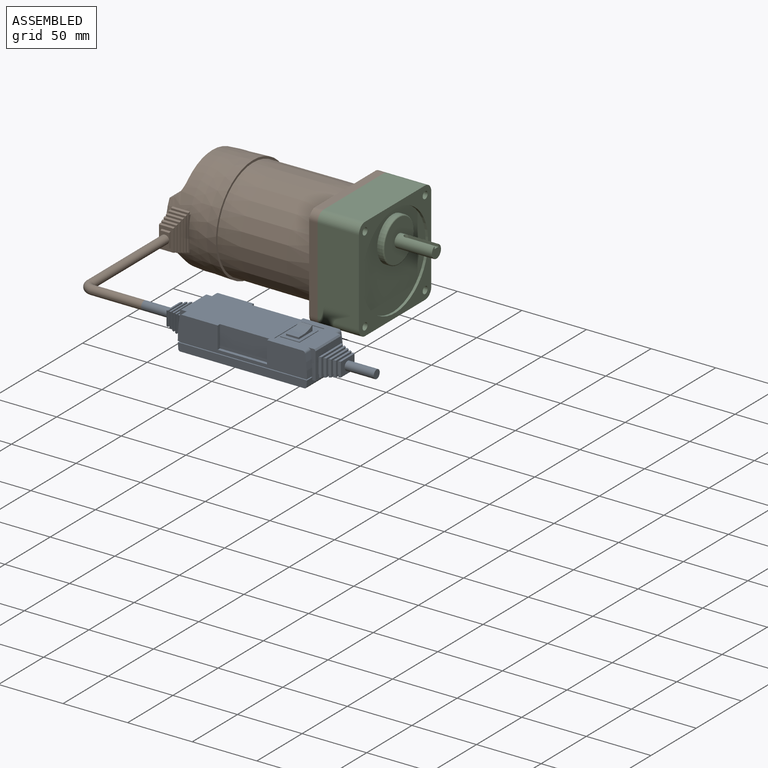
[diagram: assembled view]
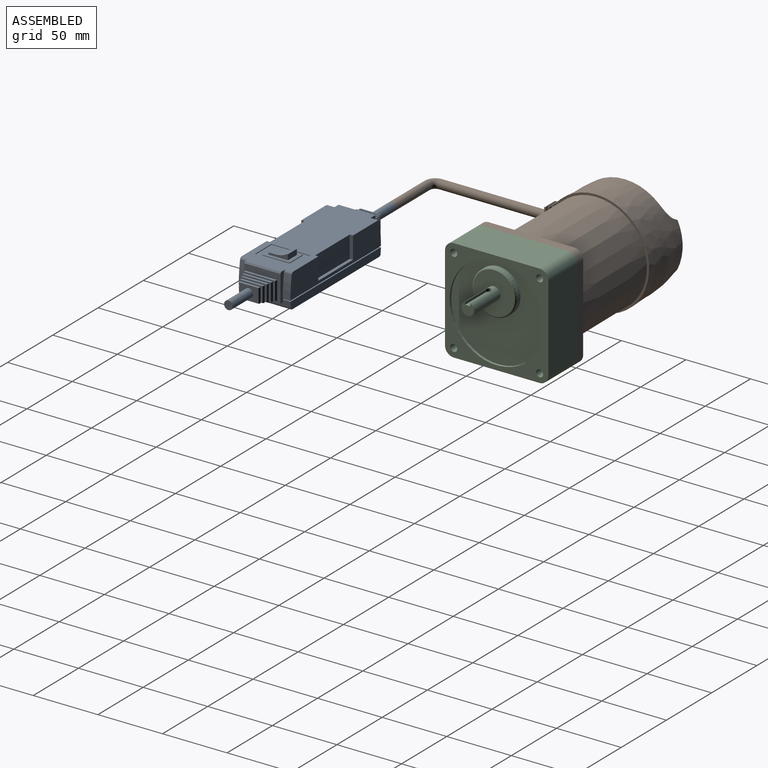
[diagram: assembled view, second angle]
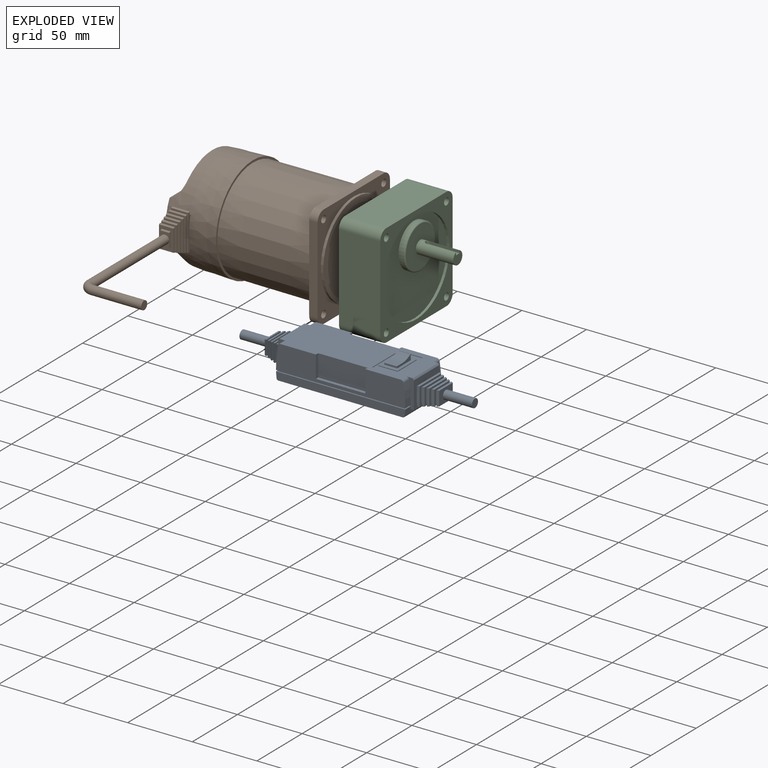
[diagram: exploded view]
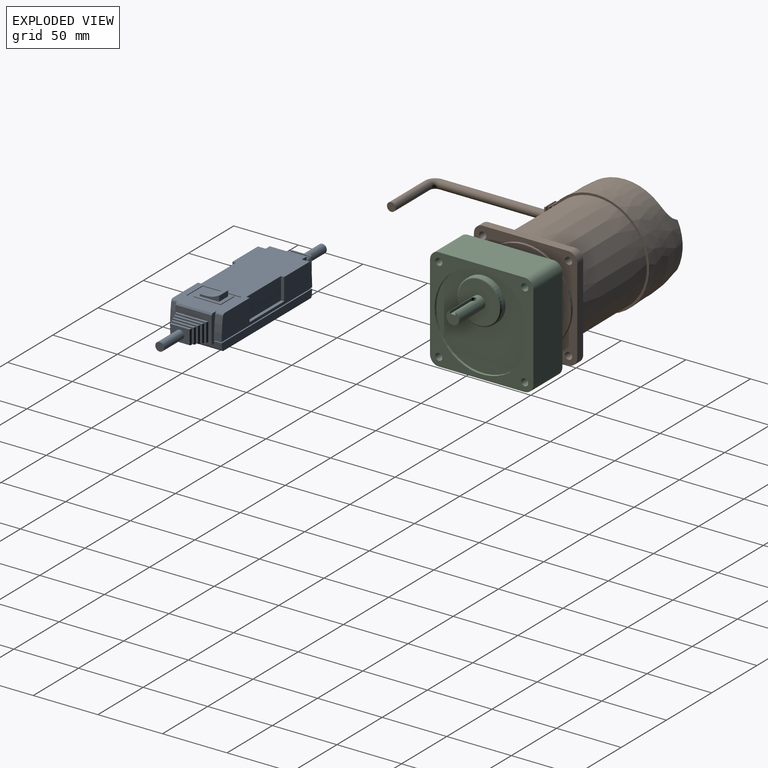
[diagram: exploded view, second angle]
ASSEMBLY  parts=3 mates=3
PART A: 174 faces, bbox 30.2x180x40 mm
  f0: plane 15x11mm, normal (0,-1,0), area 129.7mm2, adj f4,f17,f99,f100,f165
  f1: plane 16.1x11.4mm, normal (0,1,0), area 84.1mm2, adj f2,f4,f16,f17,f98,f99,f100,f101
  f2: plane 12.94x1.5mm, normal (0.99,-0.13,0), area 18.7mm2, adj f1,f97,f98,f101
  f3: plane 18.3x1.5mm, normal (0.99,-0.13,0), area 26.9mm2, adj f95,f96,f97,f102
  f4: plane 16.1x1.5mm, normal (0.99,-0.13,0), area 23.5mm2, adj f0,f1,f99,f100
  f5: plane 12x1.5mm, normal (0,0.34,-0.94), area 18.9mm2, adj f56,f112,f140,f161
  f6: plane 14.6x1.5mm, normal (0,0.34,-0.94), area 23mm2, adj f112,f114,f141,f160
  f7: plane 21.74x1.5mm, normal (-0.99,-0.13,0), area 32.1mm2, adj f46,f82,f83,f110
  f8: plane 24.9x1.5mm, normal (-0.99,-0.13,0), area 36.8mm2, adj f83,f84,f85,f109
  f9: plane 19.54x1.49mm, normal (-0.99,-0.13,0), area 28.5mm2, adj f10,f85,f86,f108
  f10: plane 18.45x1.5mm, normal (-0.01,1,0), area 27.6mm2, adj f9,f11,f86,f108
  f11: plane 22.7x1.5mm, normal (-0.99,-0.13,0), area 33.5mm2, adj f10,f87,f88,f89,f106,f107
  f12: plane 17.34x1.5mm, normal (-0.99,-0.13,0), area 25.4mm2, adj f89,f90,f91,f105
  f13: plane 20.5x1.5mm, normal (-0.99,-0.13,0), area 30.2mm2, adj f91,f92,f93,f104
  f14: plane 15.14x1.5mm, normal (-0.99,-0.13,0), area 22.1mm2, adj f93,f94,f95,f103
  f15: plane 18.3x1.5mm, normal (-0.99,-0.13,0), area 26.9mm2, adj f95,f96,f97,f102
  f16: plane 12.94x1.5mm, normal (-0.99,-0.13,0), area 18.7mm2, adj f1,f97,f98,f101
  f17: plane 16.1x1.5mm, normal (-0.99,-0.13,0), area 23.5mm2, adj f0,f1,f99,f100
  f18: plane 38.2x2.5mm, normal (-1,0,0), area 95.5mm2, adj f19,f20,f21,f76
  f19: plane 17x2.5mm, normal (0,1,0), area 42.5mm2, adj f18,f21,f76,f81
  f20: plane 17x2.5mm, normal (0,-1,0), area 42.5mm2, adj f18,f21,f76,f81
  f21: plane 38.2x17mm, normal (0,0,1), area 649.4mm2, adj f18,f19,f20,f81
  f22: plane 38.2x17mm, normal (0,0,-1), area 649.4mm2, adj f23,f24,f25,f81
  f23: plane 38.2x2.5mm, normal (-1,0,0), area 95.5mm2, adj f22,f24,f25,f74
  f24: plane 17x2.5mm, normal (0,-1,0), area 42.5mm2, adj f22,f23,f74,f81
  f25: plane 17x2.5mm, normal (0,1,0), area 42.5mm2, adj f22,f23,f74,f81
  f26: cylinder r=0.3mm len=10mm, axis (0,1,0), area 4.7mm2, adj f27,f30,f31,f32
  f27: plane 10x5.7mm, normal (-1,0,0), area 57mm2, adj f26,f28,f30,f31
  f28: cylinder r=18mm len=10mm, axis (0,1,0), area 90.5mm2, adj f27,f29,f30,f31
  f29: cylinder r=0.3mm len=10mm, axis (0,1,0), area 6.4mm2, adj f28,f30,f31,f33
  f30: plane 15x4.25mm, normal (0,-1,0), area 31.9mm2, adj f26,f27,f28,f29,f32,f33,f34
  f31: plane 15x4.25mm, normal (0,1,0), area 31.9mm2, adj f26,f27,f28,f29,f32,f33,f34
  f32: plane 10x1.2mm, normal (0,0,1), area 12mm2, adj f26,f30,f31,f34
  f33: plane 10x3.95mm, normal (0,0,-1), area 39.5mm2, adj f29,f30,f31,f34
  f34: plane 21x15mm, normal (-1,0,0), area 165mm2, adj f30,f31,f32,f33,f37,f38,f39,f40
  f35: plane 30x18mm, normal (-1,0,0), area 225mm2, adj f36,f37,f38,f39,f40,f41,f42,f43
  f36: plane 18x0.5mm, normal (0,0,1), area 9mm2, adj f35,f41,f43,f81
  f37: plane 15x0.5mm, normal (0,0,1), area 7.5mm2, adj f34,f35,f38,f40
  f38: plane 21x0.5mm, normal (0,-1,0), area 10.5mm2, adj f34,f35,f37,f39
  f39: plane 15x0.5mm, normal (0,0,-1), area 7.5mm2, adj f34,f35,f38,f40
  f40: plane 21x0.5mm, normal (0,1,0), area 10.5mm2, adj f34,f35,f37,f39
  f41: plane 30x0.5mm, normal (0,1,0), area 15mm2, adj f35,f36,f42,f81
  f42: plane 18x0.5mm, normal (0,0,-1), area 9mm2, adj f35,f41,f43,f81
  f43: plane 30x0.5mm, normal (0,-1,0), area 15mm2, adj f35,f36,f42,f81
  f44: plane 98x1mm, normal (0,0,1), area 98mm2, adj f59,f60,f77,f78
  f45: plane 98x1mm, normal (0,0,-1), area 98mm2, adj f69,f70,f79,f80
  f46: plane 28x20.8mm, normal (0,-1,0), area 321.5mm2, adj f7,f47,f48,f49,f50,f82,f110,f166
  f47: plane 28x1.2mm, normal (-0.55,-0.83,0), area 40.4mm2, adj f46,f48,f49,f81
  f48: plane 22x5.85mm, normal (0,0,-1), area 66.7mm2, adj f46,f47,f50,f65,f69,f70,f71,f72
  f49: plane 22x5.85mm, normal (0,0,1), area 66.7mm2, adj f46,f47,f50,f59,f60,f65,f66,f67
  f50: plane 28x2.68mm, normal (1,0,0), area 74.9mm2, adj f46,f48,f49,f65
  f51: plane 28x2.68mm, normal (1,0,0), area 74.9mm2, adj f53,f54,f56,f61
  f52: plane 28x5.05mm, normal (-1,0,0), area 141.3mm2, adj f53,f54,f55,f57
  f53: plane 22x5.85mm, normal (0,0,1), area 66.7mm2, adj f51,f52,f55,f56,f57,f58,f59,f60
  f54: plane 22x5.85mm, normal (0,0,-1), area 66.7mm2, adj f51,f52,f55,f56,f57,f61,f68,f69
  f55: plane 28x1.2mm, normal (-0.55,0.83,0), area 40.4mm2, adj f52,f53,f54,f56
  f56: plane 28x20.8mm, normal (0,1,0), area 321.5mm2, adj f5,f51,f53,f54,f55,f111,f140,f161
  f57: cylinder r=2mm len=40mm, axis (0,0,1), area 34mm2, adj f52,f53,f54,f58,f68,f74,f76,f81
  f58: cylinder r=110mm len=17.3mm, axis (0,0,1), area 104.3mm2, adj f53,f57,f59,f76
  f59: plane 100x6mm, normal (1,0,0), area 110mm2, adj f44,f49,f53,f58,f66,f76,f77,f78
  f60: plane 100x6mm, normal (-1,0,0), area 110mm2, adj f44,f49,f53,f61,f65,f75,f77,f78
  f61: plane 40x4.6mm, normal (0.09,1,0), area 128.5mm2, adj f51,f53,f54,f60,f62,f70,f73,f75
  f62: cylinder r=1.5mm len=40mm, axis (0,0,1), area 90.3mm2, adj f61,f63,f73,f75
  f63: plane 96.2x40mm, normal (1,0,0), area 3848mm2, adj f62,f64,f73,f75
  f64: cylinder r=1.5mm len=40mm, axis (0,0,1), area 90.3mm2, adj f63,f65,f73,f75
  f65: plane 40x4.6mm, normal (0.09,-1,0), area 128.5mm2, adj f48,f49,f50,f60,f64,f70,f73,f75
  f66: cylinder r=110mm len=17.3mm, axis (0,0,1), area 104.3mm2, adj f49,f59,f67,f76
  f67: cylinder r=2mm len=6mm, axis (0,0,1), area 17mm2, adj f49,f66,f76,f81
  f68: cylinder r=110mm len=17.3mm, axis (0,0,1), area 104.3mm2, adj f54,f57,f69,f74
  f69: plane 100x6mm, normal (1,0,0), area 110mm2, adj f45,f48,f54,f68,f71,f74,f79,f80
  f70: plane 100x6mm, normal (-1,0,0), area 110mm2, adj f45,f48,f54,f61,f65,f73,f79,f80
  f71: cylinder r=110mm len=17.3mm, axis (0,0,1), area 104.3mm2, adj f48,f69,f72,f74
  f72: cylinder r=2mm len=6mm, axis (0,0,1), area 17mm2, adj f48,f71,f74,f81
  f73: plane 100x6mm, normal (0,0,-1), area 596.1mm2, adj f61,f62,f63,f64,f65,f70
  f74: plane 100x19mm, normal (0,0,-1), area 1228.6mm2, adj f23,f24,f25,f57,f68,f69,f71,f72
  f75: plane 100x6mm, normal (0,0,1), area 596.1mm2, adj f60,f61,f62,f63,f64,f65
  f76: plane 100x19mm, normal (0,0,1), area 1228.6mm2, adj f18,f19,f20,f57,f58,f59,f66,f67
  f77: plane 5x1mm, normal (0,1,0), area 5mm2, adj f44,f53,f59,f60
  f78: plane 5x1mm, normal (0,-1,0), area 5mm2, adj f44,f49,f59,f60
  f79: plane 5x1mm, normal (0,1,0), area 5mm2, adj f45,f54,f69,f70
  f80: plane 5x1mm, normal (0,-1,0), area 5mm2, adj f45,f48,f69,f70
  f81: plane 98.35x40mm, normal (-1,0,0), area 3142.6mm2, adj f19,f20,f21,f22,f24,f25,f36,f41
  f82: plane 12x1.5mm, normal (0,-0.34,-0.94), area 18.9mm2, adj f7,f46,f83,f166
  f83: plane 24.9x14.6mm, normal (0,1,0), area 124.1mm2, adj f7,f8,f82,f84,f109,f110,f166,f167
  f84: plane 14.6x1.5mm, normal (0,-0.34,-0.94), area 23mm2, adj f8,f83,f85,f167
  f85: plane 23.8x14.2mm, normal (0,-1,0), area 119.1mm2, adj f8,f9,f84,f86,f108,f109,f167,f168
  f86: plane 13.8x1.5mm, normal (0,-0.34,-0.94), area 17.6mm2, adj f9,f10,f85,f87,f168,f169
  f87: plane 13.8x2.13mm, normal (0,1,0), area 29.4mm2, adj f11,f86,f88,f170
  f88: plane 13.8x1.5mm, normal (0,-0.34,-0.94), area 21.7mm2, adj f11,f87,f89,f170
  f89: plane 21.6x13.4mm, normal (0,-1,0), area 109.1mm2, adj f11,f12,f88,f90,f105,f106,f170,f171
  f90: plane 10.4x1.5mm, normal (0,-0.34,-0.94), area 16.3mm2, adj f12,f89,f91,f171
  f91: plane 20.5x13mm, normal (0,1,0), area 104.1mm2, adj f12,f13,f90,f92,f104,f105,f171,f172
  f92: plane 13x1.5mm, normal (0,-0.34,-0.94), area 20.4mm2, adj f13,f91,f93,f172
  f93: plane 19.4x12.6mm, normal (0,-1,0), area 99.1mm2, adj f13,f14,f92,f94,f103,f104,f172,f173
  f94: plane 9.6x1.5mm, normal (0,-0.34,-0.94), area 15mm2, adj f14,f93,f95,f173
  f95: plane 18.3x12.2mm, normal (0,1,0), area 94.1mm2, adj f3,f14,f15,f94,f96,f102,f103,f173
  f96: plane 12.2x1.5mm, normal (0,-0.34,-0.94), area 19.2mm2, adj f3,f15,f95,f97
  f97: plane 17.2x11.8mm, normal (0,-1,0), area 89.1mm2, adj f2,f3,f15,f16,f96,f98,f101,f102
  f98: plane 8.8x1.5mm, normal (0,-0.34,-0.94), area 13.7mm2, adj f1,f2,f16,f97
  f99: plane 11.4x1.5mm, normal (0,-0.34,-0.94), area 17.9mm2, adj f0,f1,f4,f17
  f100: plane 11.4x1.5mm, normal (0,-0.34,0.94), area 17.9mm2, adj f0,f1,f4,f17
  f101: plane 8.8x1.5mm, normal (0,-0.34,0.94), area 13.7mm2, adj f1,f2,f16,f97
  f102: plane 12.2x1.5mm, normal (0,-0.34,0.94), area 19.2mm2, adj f3,f15,f95,f97
  f103: plane 9.6x1.5mm, normal (0,-0.34,0.94), area 15mm2, adj f14,f93,f95,f173
  f104: plane 13x1.5mm, normal (0,-0.34,0.94), area 20.4mm2, adj f13,f91,f93,f172
  f105: plane 10.4x1.5mm, normal (0,-0.34,0.94), area 16.3mm2, adj f12,f89,f91,f171
  f106: plane 13.8x1.5mm, normal (0,-0.34,0.94), area 21.7mm2, adj f11,f89,f107,f170
  f107: plane 13.8x2.13mm, normal (0,1,0), area 29.4mm2, adj f11,f106,f108,f170
  f108: plane 13.8x1.5mm, normal (0,-0.34,0.94), area 17.6mm2, adj f9,f10,f85,f107,f168,f169
  f109: plane 14.6x1.5mm, normal (0,-0.34,0.94), area 23mm2, adj f8,f83,f85,f167
  f110: plane 12x1.5mm, normal (0,-0.34,0.94), area 18.9mm2, adj f7,f46,f83,f166
  f111: plane 12x1.5mm, normal (0,0.34,0.94), area 18.9mm2, adj f56,f112,f140,f161
  f112: plane 24.9x14.6mm, normal (0,-1,0), area 124.1mm2, adj f5,f6,f111,f113,f140,f141,f160,f161
  f113: plane 14.6x1.5mm, normal (0,0.34,0.94), area 23mm2, adj f112,f114,f141,f160
  f114: plane 23.8x14.2mm, normal (0,1,0), area 119.1mm2, adj f6,f113,f115,f139,f141,f142,f159,f160
  f115: plane 13.8x1.5mm, normal (0,0.34,0.94), area 17.6mm2, adj f114,f116,f142,f143,f158,f159
  f116: plane 13.8x2.13mm, normal (0,-1,0), area 29.4mm2, adj f115,f117,f144,f157
  f117: plane 13.8x1.5mm, normal (0,0.34,0.94), area 21.7mm2, adj f116,f118,f144,f157
  f118: plane 21.6x13.4mm, normal (0,1,0), area 109.1mm2, adj f117,f119,f136,f137,f144,f145,f156,f157
  f119: plane 10.4x1.5mm, normal (0,0.34,0.94), area 16.3mm2, adj f118,f120,f145,f156
  f120: plane 20.5x13mm, normal (0,-1,0), area 104.1mm2, adj f119,f121,f135,f136,f145,f146,f155,f156
  f121: plane 13x1.5mm, normal (0,0.34,0.94), area 20.4mm2, adj f120,f122,f146,f155
  f122: plane 19.4x12.6mm, normal (0,1,0), area 99.1mm2, adj f121,f123,f134,f135,f146,f147,f154,f155
  f123: plane 9.6x1.5mm, normal (0,0.34,0.94), area 15mm2, adj f122,f124,f147,f154
  f124: plane 18.3x12.2mm, normal (0,-1,0), area 94.1mm2, adj f123,f125,f133,f134,f147,f148,f153,f154
  f125: plane 12.2x1.5mm, normal (0,0.34,0.94), area 19.2mm2, adj f124,f126,f148,f153
  f126: plane 17.2x11.8mm, normal (0,1,0), area 89.1mm2, adj f125,f127,f132,f133,f148,f149,f152,f153
  f127: plane 8.8x1.5mm, normal (0,0.34,0.94), area 13.7mm2, adj f126,f128,f149,f152
  f128: plane 16.1x11.4mm, normal (0,-1,0), area 84.1mm2, adj f127,f129,f131,f132,f149,f150,f151,f152
  f129: plane 11.4x1.5mm, normal (0,0.34,0.94), area 17.9mm2, adj f128,f130,f150,f151
  f130: plane 15x11mm, normal (0,1,0), area 129.7mm2, adj f129,f131,f150,f151,f163
  f131: plane 11.4x1.5mm, normal (0,0.34,-0.94), area 17.9mm2, adj f128,f130,f150,f151
  f132: plane 8.8x1.5mm, normal (0,0.34,-0.94), area 13.7mm2, adj f126,f128,f149,f152
  f133: plane 12.2x1.5mm, normal (0,0.34,-0.94), area 19.2mm2, adj f124,f126,f148,f153
  f134: plane 9.6x1.5mm, normal (0,0.34,-0.94), area 15mm2, adj f122,f124,f147,f154
  f135: plane 13x1.5mm, normal (0,0.34,-0.94), area 20.4mm2, adj f120,f122,f146,f155
  f136: plane 10.4x1.5mm, normal (0,0.34,-0.94), area 16.3mm2, adj f118,f120,f145,f156
  f137: plane 13.8x1.5mm, normal (0,0.34,-0.94), area 21.7mm2, adj f118,f138,f144,f157
  f138: plane 13.8x2.13mm, normal (0,-1,0), area 29.4mm2, adj f137,f139,f144,f157
  f139: plane 13.8x1.5mm, normal (0,0.34,-0.94), area 17.6mm2, adj f114,f138,f142,f143,f158,f159
  f140: plane 21.74x1.5mm, normal (-0.99,0.13,0), area 32.1mm2, adj f5,f56,f111,f112
  f141: plane 24.9x1.5mm, normal (-0.99,0.13,0), area 36.8mm2, adj f6,f112,f113,f114
  f142: plane 19.54x1.49mm, normal (-0.99,0.13,0), area 28.5mm2, adj f114,f115,f139,f143
  f143: plane 18.45x1.5mm, normal (-0.01,-1,0), area 27.6mm2, adj f115,f139,f142,f144
  f144: plane 22.7x1.5mm, normal (-0.99,0.13,0), area 33.5mm2, adj f116,f117,f118,f137,f138,f143
  f145: plane 17.34x1.5mm, normal (-0.99,0.13,0), area 25.4mm2, adj f118,f119,f120,f136
  f146: plane 20.5x1.5mm, normal (-0.99,0.13,0), area 30.2mm2, adj f120,f121,f122,f135
  f147: plane 15.14x1.5mm, normal (-0.99,0.13,0), area 22.1mm2, adj f122,f123,f124,f134
  f148: plane 18.3x1.5mm, normal (-0.99,0.13,0), area 26.9mm2, adj f124,f125,f126,f133
  f149: plane 12.94x1.5mm, normal (-0.99,0.13,0), area 18.7mm2, adj f126,f127,f128,f132
  f150: plane 16.1x1.5mm, normal (-0.99,0.13,0), area 23.5mm2, adj f128,f129,f130,f131
  f151: plane 16.1x1.5mm, normal (0.99,0.13,0), area 23.5mm2, adj f128,f129,f130,f131
  f152: plane 12.94x1.5mm, normal (0.99,0.13,0), area 18.7mm2, adj f126,f127,f128,f132
  f153: plane 18.3x1.5mm, normal (0.99,0.13,0), area 26.9mm2, adj f124,f125,f126,f133
  f154: plane 15.14x1.5mm, normal (0.99,0.13,0), area 22.1mm2, adj f122,f123,f124,f134
  f155: plane 20.5x1.5mm, normal (0.99,0.13,0), area 30.2mm2, adj f120,f121,f122,f135
  f156: plane 17.34x1.5mm, normal (0.99,0.13,0), area 25.4mm2, adj f118,f119,f120,f136
  f157: plane 22.7x1.5mm, normal (0.99,0.13,0), area 33.5mm2, adj f116,f117,f118,f137,f138,f158
  f158: plane 18.45x1.5mm, normal (0.01,-1,0), area 27.6mm2, adj f115,f139,f157,f159
  f159: plane 19.54x1.49mm, normal (0.99,0.13,0), area 28.5mm2, adj f114,f115,f139,f158
  f160: plane 24.9x1.5mm, normal (0.99,0.13,0), area 36.8mm2, adj f6,f112,f113,f114
  f161: plane 21.74x1.5mm, normal (0.99,0.13,0), area 32.1mm2, adj f5,f56,f111,f112
  f162: plane 6.7x6.7mm, normal (0,1,0), area 35.3mm2, adj f163
  f163: cylinder r=3.35mm len=22.5mm, axis (0,1,0), area 473.6mm2, adj f130,f162
  f164: plane 6.7x6.7mm, normal (0,-1,0), area 35.3mm2, adj f165
  f165: cylinder r=3.35mm len=22.5mm, axis (0,1,0), area 473.6mm2, adj f0,f164
  f166: plane 21.74x1.5mm, normal (0.99,-0.13,0), area 32.1mm2, adj f46,f82,f83,f110
  f167: plane 24.9x1.5mm, normal (0.99,-0.13,0), area 36.8mm2, adj f83,f84,f85,f109
  f168: plane 19.54x1.49mm, normal (0.99,-0.13,0), area 28.5mm2, adj f85,f86,f108,f169
  f169: plane 18.45x1.5mm, normal (0.01,1,0), area 27.6mm2, adj f86,f108,f168,f170
  f170: plane 22.7x1.5mm, normal (0.99,-0.13,0), area 33.5mm2, adj f87,f88,f89,f106,f107,f169
  f171: plane 17.34x1.5mm, normal (0.99,-0.13,0), area 25.4mm2, adj f89,f90,f91,f105
  f172: plane 20.5x1.5mm, normal (0.99,-0.13,0), area 30.2mm2, adj f91,f92,f93,f104
  f173: plane 15.14x1.5mm, normal (0.99,-0.13,0), area 22.1mm2, adj f93,f94,f95,f103
PART B: 162 faces, bbox 126.5x192.4x82 mm
  f0: plane 13.41x2.19mm, normal (0,-0.34,0.94), area 22.4mm2, adj f39,f96,f100,f101,f160
  f1: plane 13.41x2.19mm, normal (0,-0.34,-0.94), area 22.4mm2, adj f2,f96,f100,f101,f160
  f2: plane 13.4x2.5mm, normal (0,1,0), area 33.5mm2, adj f1,f3,f96,f160
  f3: plane 13.4x1.5mm, normal (0,-0.34,-0.94), area 21.4mm2, adj f2,f37,f96,f160
  f4: plane 10.23x1.5mm, normal (0,-0.34,-0.94), area 16.1mm2, adj f35,f37,f76,f95
  f5: plane 13.4x1.5mm, normal (0,-0.34,-0.94), area 21.4mm2, adj f33,f35,f97,f161
  f6: plane 9.6x1.5mm, normal (0,-0.34,-0.94), area 15.1mm2, adj f7,f33,f77,f94
  f7: plane 24.54x13.28mm, normal (0,1,0), area 144.6mm2, adj f6,f8,f31,f32,f77,f78,f93,f94
  f8: plane 13.28x1.5mm, normal (0,-0.34,-0.94), area 21mm2, adj f7,f9,f78,f93
  f9: plane 23.45x12.97mm, normal (0,-1,0), area 138.6mm2, adj f8,f10,f30,f31,f78,f79,f92,f93
  f10: plane 8.97x1.5mm, normal (0,-0.34,-0.94), area 14.1mm2, adj f9,f11,f79,f92
  f11: plane 22.36x12.65mm, normal (0,1,0), area 132.7mm2, adj f10,f12,f29,f30,f79,f80,f91,f92
  f12: plane 12.65x1.5mm, normal (0,-0.34,-0.94), area 19.9mm2, adj f11,f13,f80,f91
  f13: plane 21.26x12.34mm, normal (0,-1,0), area 126.8mm2, adj f12,f14,f28,f29,f80,f81,f90,f91
  f14: plane 8.34x1.5mm, normal (0,-0.34,-0.94), area 13.1mm2, adj f13,f15,f81,f90
  f15: plane 20.17x12.02mm, normal (0,1,0), area 120.8mm2, adj f14,f16,f27,f28,f81,f82,f89,f90
  f16: plane 12.02x1.5mm, normal (0,-0.34,-0.94), area 18.9mm2, adj f15,f17,f82,f89
  f17: plane 19.08x11.71mm, normal (0,-1,0), area 114.9mm2, adj f16,f18,f26,f27,f82,f83,f88,f89
  f18: plane 7.71x1.5mm, normal (0,-0.34,-0.94), area 12.1mm2, adj f17,f19,f83,f88
  f19: plane 17.99x11.39mm, normal (0,1,0), area 108.9mm2, adj f18,f20,f25,f26,f83,f84,f87,f88
  f20: plane 11.39x1.5mm, normal (0,-0.34,-0.94), area 17.9mm2, adj f19,f21,f84,f87
  f21: plane 16.9x11.08mm, normal (0,-1,0), area 103mm2, adj f20,f22,f24,f25,f84,f85,f86,f87
  f22: plane 7.08x1.5mm, normal (0,-0.34,-0.94), area 11mm2, adj f21,f23,f85,f86
  f23: plane 10.81x6.76mm, normal (0,-1,0), area 37.8mm2, adj f22,f24,f75,f85,f86
  f24: plane 7.08x1.5mm, normal (0,-0.34,0.94), area 11mm2, adj f21,f23,f85,f86
  f25: plane 11.39x1.5mm, normal (0,-0.34,0.94), area 17.9mm2, adj f19,f21,f84,f87
  f26: plane 7.71x1.5mm, normal (0,-0.34,0.94), area 12.1mm2, adj f17,f19,f83,f88
  f27: plane 12.02x1.5mm, normal (0,-0.34,0.94), area 18.9mm2, adj f15,f17,f82,f89
  f28: plane 8.34x1.5mm, normal (0,-0.34,0.94), area 13.1mm2, adj f13,f15,f81,f90
  f29: plane 12.65x1.5mm, normal (0,-0.34,0.94), area 19.9mm2, adj f11,f13,f80,f91
  f30: plane 8.97x1.5mm, normal (0,-0.34,0.94), area 14.1mm2, adj f9,f11,f79,f92
  f31: plane 13.28x1.5mm, normal (0,-0.34,0.94), area 21mm2, adj f7,f9,f78,f93
  f32: plane 9.6x1.5mm, normal (0,-0.34,0.94), area 15.1mm2, adj f7,f33,f77,f94
  f33: plane 25.63x13.4mm, normal (0,-1,0), area 145.4mm2, adj f5,f6,f32,f34,f77,f94,f97,f161
  f34: plane 13.4x1.5mm, normal (0,-0.34,0.94), area 21.4mm2, adj f33,f35,f97,f161
  f35: plane 26.72x13.4mm, normal (0,1,0), area 142.7mm2, adj f4,f5,f34,f36,f76,f95,f97,f161
  f36: plane 10.23x1.5mm, normal (0,-0.34,0.94), area 16.1mm2, adj f35,f37,f76,f95
  f37: plane 27.82x13.4mm, normal (0,-1,0), area 139.3mm2, adj f3,f4,f36,f38,f76,f95,f96,f160
  f38: plane 13.4x1.5mm, normal (0,-0.34,0.94), area 21.4mm2, adj f37,f39,f96,f160
  f39: plane 13.4x2.5mm, normal (0,1,0), area 33.5mm2, adj f0,f38,f96,f160
  f40: plane 16x6.75mm, normal (0,1,0), area 73.5mm2, adj f42,f43,f44,f45,f46,f47,f48
  f41: plane 16x6.75mm, normal (0,-1,0), area 73.5mm2, adj f42,f43,f44,f45,f46,f47,f48
  f42: cylinder r=0.3mm len=10mm, axis (0,1,0), area 6.4mm2, adj f40,f41,f43,f47
  f43: cylinder r=18mm len=10mm, axis (0,1,0), area 100.5mm2, adj f40,f41,f42,f44
  f44: plane 10x5.7mm, normal (1,0,0), area 57mm2, adj f40,f41,f43,f45
  f45: cylinder r=0.3mm len=10mm, axis (0,1,0), area 4.7mm2, adj f40,f41,f44,f46
  f46: plane 10x3.7mm, normal (0,0,1), area 37mm2, adj f40,f41,f45,f48
  f47: plane 10x6.45mm, normal (0,0,-1), area 64.5mm2, adj f40,f41,f42,f48
  f48: plane 21.5x15.5mm, normal (1,0,0), area 173.2mm2, adj f40,f41,f46,f47,f49,f50,f51,f52
  f49: plane 15.5x1mm, normal (0,0,1), area 15.5mm2, adj f48,f50,f52,f60
  f50: plane 21.5x1mm, normal (0,1,0), area 21.5mm2, adj f48,f49,f51,f60
  f51: plane 15.5x1mm, normal (0,0,-1), area 15.5mm2, adj f48,f50,f52,f60
  f52: plane 21.5x1mm, normal (0,-1,0), area 21.5mm2, adj f48,f49,f51,f60
  f53: plane 19x9mm, normal (1,0,0), area 153.6mm2, adj f54,f55,f56,f57
  f54: cylinder r=4.5mm len=9mm, axis (1,0,0), area 113.1mm2, adj f53,f55,f57,f58
  f55: plane 10x8mm, normal (0,0,-1), area 80mm2, adj f53,f54,f56,f58
  f56: cylinder r=4.5mm len=9mm, axis (1,0,0), area 113.1mm2, adj f53,f55,f57,f58
  f57: plane 10x8mm, normal (0,0,1), area 80mm2, adj f53,f54,f56,f58
  f58: plane 20x20mm, normal (1,0,0), area 160.5mm2, adj f54,f55,f56,f57,f59
  f59: cylinder r=10mm len=20mm, axis (1,0,0), area 62.8mm2, adj f58,f60
  f60: plane 58.5x28mm, normal (1,0,0), area 990.6mm2, adj f49,f50,f51,f52,f59,f61,f62,f63
  f61: plane 58.5x1mm, normal (0,0,1), area 58.5mm2, adj f60,f62,f64,f98
  f62: plane 28x1mm, normal (0,1,0), area 28mm2, adj f60,f61,f63,f98
  f63: plane 58.5x1mm, normal (0,0,-1), area 58.5mm2, adj f60,f62,f64,f98
  f64: plane 28x1mm, normal (0,-1,0), area 28mm2, adj f60,f61,f63,f98
  f65: plane 52.67x10mm, normal (1,0,0), area 360.9mm2, adj f66,f101
  f66: cylinder r=13mm len=70.02mm, axis (0,1,0), area 1071.9mm2, adj f65,f67,f98,f99,f101
  f67: torus R=38.07mm, axis (1,0,0), area 53mm2, adj f66,f98,f101,f125
  f68: plane 80x80mm, normal (-1,0,0), area 2079.9mm2, adj f70,f104,f105,f106,f107,f117,f118,f119
  f69: plane 80x80mm, normal (1,0,0), area 1103.2mm2, adj f70,f109,f111,f113,f115,f116,f117,f118
  f70: cylinder r=6.8mm len=6.8mm, axis (1,0,0), area 69.4mm2, adj f68,f69,f117,f123
  f71: plane 73x73mm, normal (-1,0,0), area 893.5mm2, adj f126,f127,f128,f129,f130,f131,f132,f133
  f72: plane 6.7x6.7mm, normal (-1,0,0), area 35.3mm2, adj f73
  f73: cylinder r=3.35mm len=40mm, axis (-1,0,0), area 841.9mm2, adj f72,f74
  f74: torus R=6mm, axis (0,0,1), area 198.4mm2, adj f73,f75
  f75: cylinder r=3.35mm len=82.5mm, axis (0,1,0), area 1736.5mm2, adj f23,f74
  f76: plane 22.82x1.5mm, normal (-0.99,-0.1,0), area 33.6mm2, adj f4,f35,f36,f37
  f77: plane 20.63x1.5mm, normal (-0.99,-0.1,0), area 30.3mm2, adj f6,f7,f32,f33
  f78: plane 24.54x1.5mm, normal (-0.99,-0.1,0), area 36.2mm2, adj f7,f8,f9,f31
  f79: plane 18.45x1.5mm, normal (-0.99,-0.1,0), area 27mm2, adj f9,f10,f11,f30
  f80: plane 22.36x1.5mm, normal (-0.99,-0.1,0), area 32.9mm2, adj f11,f12,f13,f29
  f81: plane 16.26x1.5mm, normal (-0.99,-0.1,0), area 23.7mm2, adj f13,f14,f15,f28
  f82: plane 20.17x1.5mm, normal (-0.99,-0.1,0), area 29.6mm2, adj f15,f16,f17,f27
  f83: plane 14.08x1.5mm, normal (-0.99,-0.1,0), area 20.4mm2, adj f17,f18,f19,f26
  f84: plane 17.99x1.5mm, normal (-0.99,-0.1,0), area 26.3mm2, adj f19,f20,f21,f25
  f85: plane 11.9x1.5mm, normal (-0.99,-0.1,0), area 17.1mm2, adj f21,f22,f23,f24
  f86: plane 11.9x1.5mm, normal (0.99,-0.1,0), area 17.1mm2, adj f21,f22,f23,f24
  f87: plane 17.99x1.5mm, normal (0.99,-0.1,0), area 26.3mm2, adj f19,f20,f21,f25
  f88: plane 14.08x1.5mm, normal (0.99,-0.1,0), area 20.4mm2, adj f17,f18,f19,f26
  f89: plane 20.17x1.5mm, normal (0.99,-0.1,0), area 29.6mm2, adj f15,f16,f17,f27
  f90: plane 16.26x1.5mm, normal (0.99,-0.1,0), area 23.7mm2, adj f13,f14,f15,f28
  f91: plane 22.36x1.5mm, normal (0.99,-0.1,0), area 32.9mm2, adj f11,f12,f13,f29
  f92: plane 18.45x1.5mm, normal (0.99,-0.1,0), area 27mm2, adj f9,f10,f11,f30
  f93: plane 24.54x1.5mm, normal (0.99,-0.1,0), area 36.2mm2, adj f7,f8,f9,f31
  f94: plane 20.63x1.5mm, normal (0.99,-0.1,0), area 30.3mm2, adj f6,f7,f32,f33
  f95: plane 22.82x1.5mm, normal (0.99,-0.1,0), area 33.6mm2, adj f4,f35,f36,f37
  f96: plane 28.91x3.68mm, normal (1,0,0), area 60.2mm2, adj f0,f1,f2,f3,f37,f38,f39,f101
  f97: plane 26.72x1.5mm, normal (1,0,0), area 39.3mm2, adj f5,f33,f34,f35
  f98: plane 76.15x34mm, normal (1,0,0), area 862.1mm2, adj f61,f62,f63,f64,f66,f67,f99,f125
  f99: torus R=38.07mm, axis (1,0,0), area 53mm2, adj f66,f98,f101,f125
  f100: cylinder r=40.4mm len=80.8mm, axis (-1,0,0), area 1759.2mm2, adj f0,f1,f101,f102,f160
  f101: cone r=40.4mm half-angle=4.3deg, axis (-1,0,0), area 2779.1mm2, adj f0,f1,f65,f66,f67,f96,f99,f100
  f102: cone r=41mm half-angle=2.3deg, axis (-1,0,0), area 3838.9mm2, adj f100,f103
  f103: plane 82x82mm, normal (-1,0,0), area 430.9mm2, adj f102,f116
  f104: cylinder r=2.75mm len=7mm, axis (-1,0,0), area 121mm2, adj f68,f108
  f105: cylinder r=2.75mm len=7mm, axis (-1,0,0), area 121mm2, adj f68,f110
  f106: cylinder r=2.75mm len=7mm, axis (-1,0,0), area 121mm2, adj f68,f112
  f107: cylinder r=2.75mm len=7mm, axis (-1,0,0), area 121mm2, adj f68,f114
  f108: plane 10x10mm, normal (1,0,0), area 54.8mm2, adj f104,f109
  f109: cylinder r=5mm len=10mm, axis (-1,0,0), area 15.7mm2, adj f69,f108
  f110: plane 10x10mm, normal (1,0,0), area 54.8mm2, adj f105,f111
  f111: cylinder r=5mm len=10mm, axis (-1,0,0), area 15.7mm2, adj f69,f110
  f112: plane 10x10mm, normal (1,0,0), area 54.8mm2, adj f106,f113
  f113: cylinder r=5mm len=10mm, axis (-1,0,0), area 15.7mm2, adj f69,f112
  f114: plane 10x10mm, normal (1,0,0), area 54.8mm2, adj f107,f115
  f115: cylinder r=5mm len=10mm, axis (-1,0,0), area 15.7mm2, adj f69,f114
  f116: cone r=39.7mm half-angle=0.3deg, axis (-1,0,0), area 17736mm2, adj f69,f103
  f117: plane 66.4x6.5mm, normal (0,0,1), area 431.6mm2, adj f68,f69,f70,f118
  f118: cylinder r=6.8mm len=6.8mm, axis (1,0,0), area 69.4mm2, adj f68,f69,f117,f119
  f119: plane 66.4x6.5mm, normal (0,-1,0), area 431.6mm2, adj f68,f69,f118,f120
  f120: cylinder r=6.8mm len=6.8mm, axis (1,0,0), area 69.4mm2, adj f68,f69,f119,f121
  f121: plane 66.4x6.5mm, normal (0,0,-1), area 431.6mm2, adj f68,f69,f120,f122
  f122: cylinder r=6.8mm len=6.8mm, axis (1,0,0), area 69.4mm2, adj f68,f69,f121,f123
  f123: plane 66.4x6.5mm, normal (0,1,0), area 431.6mm2, adj f68,f69,f70,f122
  f124: plane 52.67x10mm, normal (1,0,0), area 360.9mm2, adj f101,f125
  f125: cylinder r=13mm len=70.02mm, axis (0,1,0), area 1071.9mm2, adj f67,f98,f99,f101,f124
  f126: cylinder r=36.5mm len=73mm, axis (-1,0,0), area 458.7mm2, adj f68,f71
  f127: cylinder r=1mm len=3mm, axis (1,0,0), area 3.5mm2, adj f71,f128,f158,f159
  f128: plane 3x0.06mm, normal (0,0.71,-0.71), area 0.3mm2, adj f71,f127,f129,f159
  f129: cylinder r=2mm len=3mm, axis (1,0,0), area 7.5mm2, adj f71,f128,f130,f159
  f130: cylinder r=33.4mm len=15.04mm, axis (1,0,0), area 65mm2, adj f71,f129,f131,f159
  f131: cylinder r=2mm len=3mm, axis (1,0,0), area 7.5mm2, adj f71,f130,f132,f159
  f132: plane 3x0.06mm, normal (0,-0.71,0.71), area 0.3mm2, adj f71,f131,f133,f159
  f133: cylinder r=1mm len=3mm, axis (1,0,0), area 3.5mm2, adj f71,f132,f134,f159
  f134: cylinder r=31.4mm len=22.86mm, axis (1,0,0), area 70.2mm2, adj f71,f133,f135,f159
  f135: cylinder r=1mm len=3mm, axis (1,0,0), area 3.5mm2, adj f71,f134,f136,f159
  f136: plane 3x0.06mm, normal (0,-0.71,-0.71), area 0.3mm2, adj f71,f135,f137,f159
  f137: cylinder r=2mm len=3mm, axis (1,0,0), area 7.5mm2, adj f71,f136,f138,f159
  f138: cylinder r=33.4mm len=15.04mm, axis (1,0,0), area 65mm2, adj f71,f137,f139,f159
  f139: cylinder r=2mm len=3mm, axis (1,0,0), area 7.5mm2, adj f71,f138,f140,f159
  f140: plane 3x0.06mm, normal (0,0.71,0.71), area 0.3mm2, adj f71,f139,f141,f159
  f141: cylinder r=1mm len=3mm, axis (1,0,0), area 3.5mm2, adj f71,f140,f142,f159
  f142: cylinder r=31.4mm len=22.86mm, axis (1,0,0), area 70.2mm2, adj f71,f141,f143,f159
  f143: cylinder r=1mm len=3mm, axis (1,0,0), area 3.5mm2, adj f71,f142,f144,f159
  f144: plane 3x0.06mm, normal (0,-0.71,0.71), area 0.3mm2, adj f71,f143,f145,f159
  f145: cylinder r=2mm len=3mm, axis (1,0,0), area 7.5mm2, adj f71,f144,f146,f159
  f146: cylinder r=33.4mm len=15.04mm, axis (1,0,0), area 65mm2, adj f71,f145,f147,f159
  f147: cylinder r=2mm len=3mm, axis (1,0,0), area 7.5mm2, adj f71,f146,f148,f159
  f148: plane 3x0.06mm, normal (0,0.71,-0.71), area 0.3mm2, adj f71,f147,f149,f159
  f149: cylinder r=1mm len=3mm, axis (1,0,0), area 3.5mm2, adj f71,f148,f150,f159
  f150: cylinder r=31.4mm len=22.86mm, axis (1,0,0), area 70.2mm2, adj f71,f149,f151,f159
  f151: cylinder r=1mm len=3mm, axis (1,0,0), area 3.5mm2, adj f71,f150,f152,f159
  f152: plane 3x0.06mm, normal (0,0.71,0.71), area 0.3mm2, adj f71,f151,f153,f159
  f153: cylinder r=2mm len=3mm, axis (1,0,0), area 7.5mm2, adj f71,f152,f154,f159
  f154: cylinder r=33.4mm len=15.04mm, axis (1,0,0), area 65mm2, adj f71,f153,f155,f159
  f155: cylinder r=2mm len=3mm, axis (1,0,0), area 7.5mm2, adj f71,f154,f156,f159
  f156: plane 3x0.06mm, normal (0,-0.71,-0.71), area 0.3mm2, adj f71,f155,f157,f159
  f157: cylinder r=1mm len=3mm, axis (1,0,0), area 3.5mm2, adj f71,f156,f158,f159
  f158: cylinder r=31.4mm len=22.86mm, axis (1,0,0), area 70.2mm2, adj f71,f127,f157,f159
  f159: plane 62.8x62.8mm, normal (-1,0,0), area 3291.8mm2, adj f127,f128,f129,f130,f131,f132,f133,f134
  f160: plane 28.91x2.53mm, normal (-1,0,0), area 35.7mm2, adj f0,f1,f2,f3,f37,f38,f39,f100
  f161: plane 26.72x1.5mm, normal (-1,0,0), area 39.3mm2, adj f5,f33,f34,f35
PART C: 27 faces, bbox 64x80x80 mm
  f0: cylinder r=2mm len=4mm, axis (0,1,0), area 13.1mm2, adj f1,f2,f8,f26
  f1: plane 23x2.08mm, normal (0,0,-1), area 47.9mm2, adj f0,f7,f8,f26
  f2: plane 23x2.08mm, normal (0,0,1), area 47.9mm2, adj f0,f7,f8,f26
  f3: cylinder r=17mm len=34mm, axis (-1,0,0), area 427.3mm2, adj f4,f6
  f4: torus R=16mm, axis (1,0,0), area 164.2mm2, adj f3,f5
  f5: plane 32x32mm, normal (-1,0,0), area 725.7mm2, adj f4,f8
  f6: plane 73x73mm, normal (-1,0,0), area 3277.5mm2, adj f3,f9
  f7: plane 10x9.58mm, normal (-1,0,0), area 69.1mm2, adj f1,f2,f8,f26
  f8: cylinder r=5mm len=29mm, axis (-1,0,0), area 816.4mm2, adj f0,f1,f2,f5,f7
  f9: cylinder r=36.5mm len=73mm, axis (-1,0,0), area 458.7mm2, adj f6,f11
  f10: plane 80x80mm, normal (1,0,0), area 1964.4mm2, adj f12,f13,f14,f15,f16,f17,f18,f19
  f11: plane 80x80mm, normal (-1,0,0), area 2079.9mm2, adj f9,f12,f13,f14,f15,f16,f17,f18
  f12: cylinder r=2.75mm len=32mm, axis (1,0,0), area 552.9mm2, adj f10,f11
  f13: cylinder r=2.75mm len=32mm, axis (1,0,0), area 552.9mm2, adj f10,f11
  f14: cylinder r=2.75mm len=32mm, axis (1,0,0), area 552.9mm2, adj f10,f11
  f15: cylinder r=2.75mm len=32mm, axis (1,0,0), area 552.9mm2, adj f10,f11
  f16: cylinder r=6.8mm len=32mm, axis (1,0,0), area 341.8mm2, adj f10,f11,f17,f23
  f17: plane 66.4x32mm, normal (0,1,0), area 2124.8mm2, adj f10,f11,f16,f18
  f18: cylinder r=6.8mm len=32mm, axis (1,0,0), area 341.8mm2, adj f10,f11,f17,f19
  f19: plane 66.4x32mm, normal (0,0,-1), area 2124.8mm2, adj f10,f11,f18,f20
  f20: cylinder r=6.8mm len=32mm, axis (1,0,0), area 341.8mm2, adj f10,f11,f19,f21
  f21: plane 66.4x32mm, normal (0,-1,0), area 2124.8mm2, adj f10,f11,f20,f22
  f22: cylinder r=6.8mm len=32mm, axis (1,0,0), area 341.8mm2, adj f10,f11,f21,f23
  f23: plane 66.4x32mm, normal (0,0,1), area 2124.8mm2, adj f10,f11,f16,f22
  f24: cylinder r=37mm len=74mm, axis (-1,0,0), area 697.4mm2, adj f10,f25
  f25: plane 74x74mm, normal (1,0,0), area 4300.8mm2, adj f24
  f26: plane 25x4mm, normal (0,1,0), area 98.3mm2, adj f0,f1,f2,f7
PLACE A rot(axis=(0.58,0.58,-0.58),120deg) t=(26.14,-147.7,5.16)mm
PLACE B rot(axis=(0,1,0),180deg) t=(-3.86,-1.7,5.16)mm
PLACE C rot(axis=(0,-0.71,-0.71),180deg) t=(28.14,-1.7,20.16)mm
MATE revolute B.f73 <-> A.f163  axis (1,0,0) through (-63.86,-147.7,5.16)mm
MATE revolute C.f16 <-> B.f122  axis (-1,0,0) through (-3.86,31.5,38.36)mm
MATE cylindrical C.f15 <-> B.f105  axis (-1,0,0) through (-3.86,-34.93,38.39)mm
